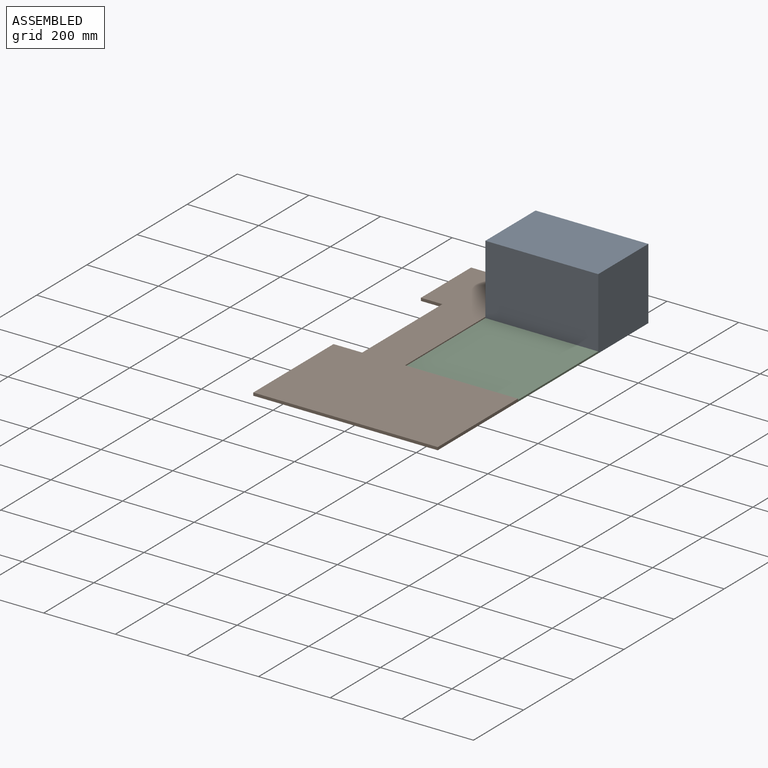
[diagram: assembled view]
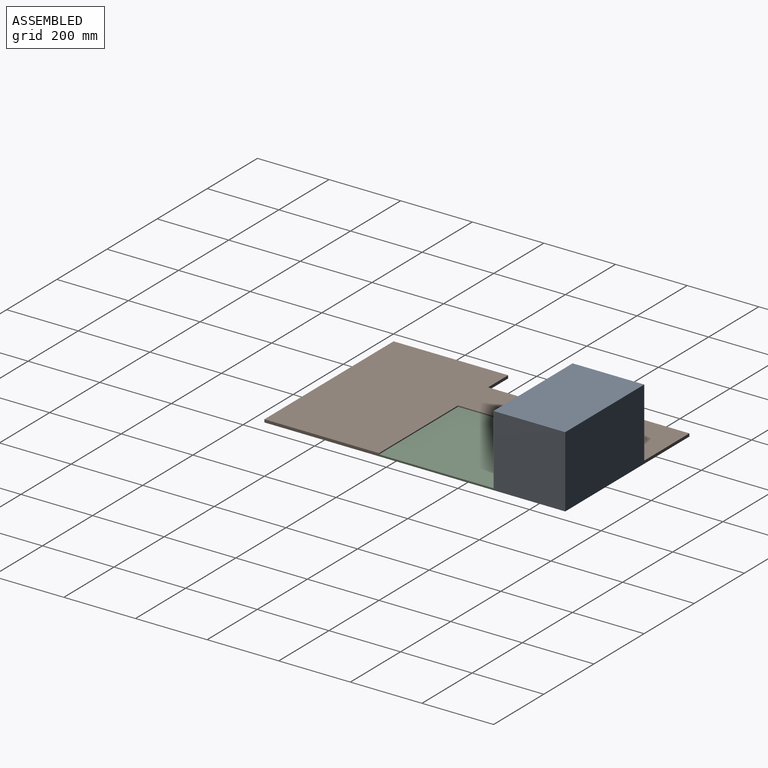
[diagram: assembled view, second angle]
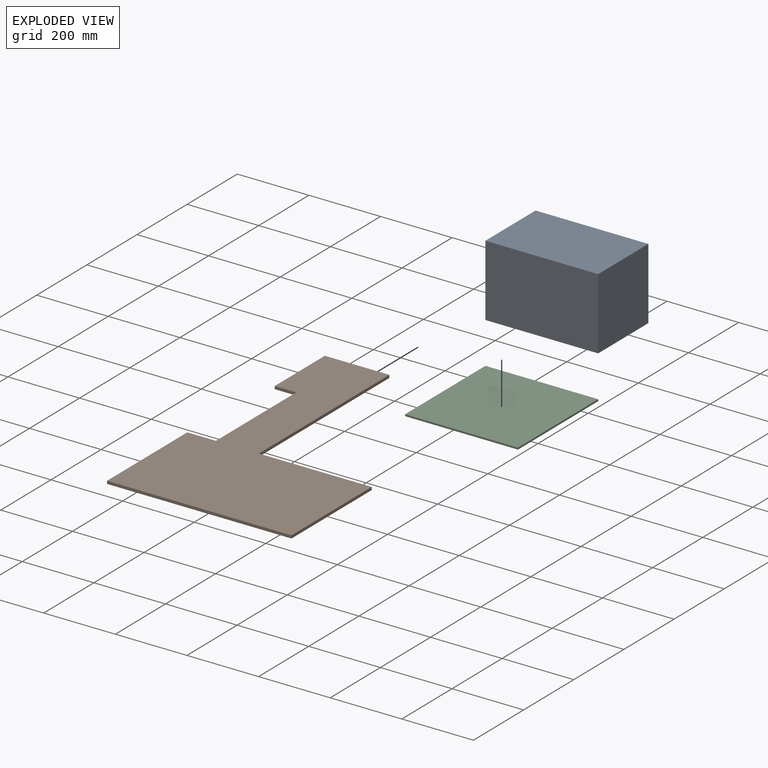
[diagram: exploded view]
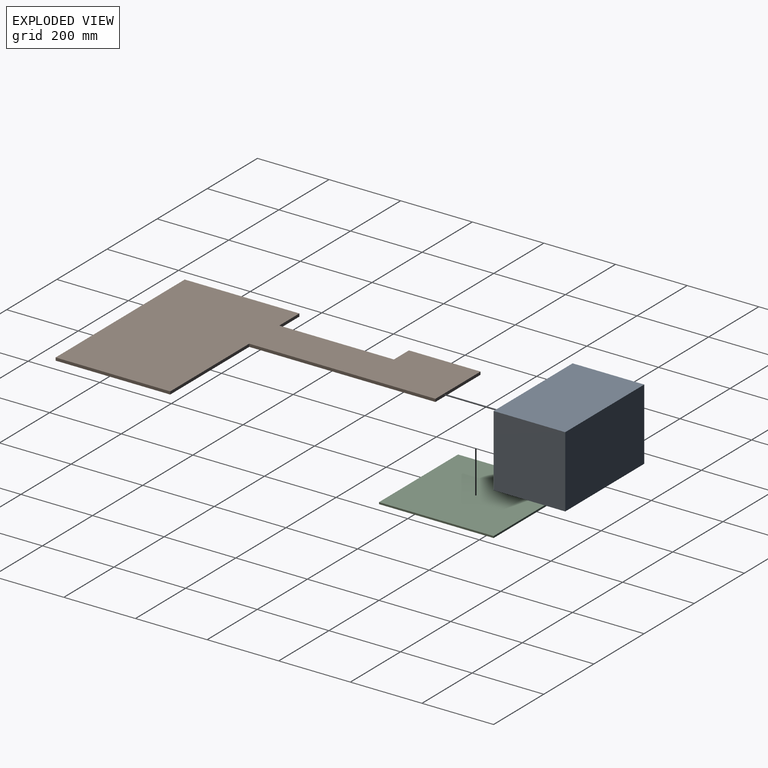
[diagram: exploded view, second angle]
ASSEMBLY  parts=3 mates=2
PART A: 6 faces, bbox 315x200x200 mm
  f0: plane 315x200mm, normal (0,-1,0), area 63000mm2, adj f1,f3,f4,f5
  f1: plane 200x200mm, normal (1,0,0), area 40000mm2, adj f0,f2,f4,f5
  f2: plane 315x200mm, normal (0,1,0), area 63000mm2, adj f1,f3,f4,f5
  f3: plane 200x200mm, normal (-1,0,0), area 40000mm2, adj f0,f2,f4,f5
  f4: plane 315x200mm, normal (0,0,1), area 63000mm2, adj f0,f1,f2,f3
  f5: plane 315x200mm, normal (0,0,-1), area 63000mm2, adj f0,f1,f2,f3
PART B: 12 faces, bbox 515x840x8 mm
  f0: plane 180x8mm, normal (0,1,0), area 1440mm2, adj f1,f9,f10,f11
  f1: plane 200x8mm, normal (-1,0,0), area 1600mm2, adj f0,f2,f10,f11
  f2: plane 60x8mm, normal (0,-1,0), area 480mm2, adj f1,f3,f10,f11
  f3: plane 320x8mm, normal (-1,0,0), area 2560mm2, adj f2,f4,f10,f11
  f4: plane 80x8mm, normal (0,1,0), area 640mm2, adj f3,f5,f10,f11
  f5: plane 320x8mm, normal (-1,0,0), area 2560mm2, adj f4,f6,f10,f11
  f6: plane 515x8mm, normal (0,-1,0), area 4120mm2, adj f5,f7,f10,f11
  f7: plane 320x8mm, normal (1,0,0), area 2560mm2, adj f6,f8,f10,f11
  f8: plane 315x8mm, normal (0,1,0), area 2520mm2, adj f7,f9,f10,f11
  f9: plane 520x8mm, normal (1,0,0), area 4160mm2, adj f0,f8,f10,f11
  f10: plane 840x515mm, normal (0,0,1), area 239200mm2, adj f0,f1,f2,f3,f4,f5,f6,f7
  f11: plane 840x515mm, normal (0,0,-1), area 239200mm2, adj f0,f1,f2,f3,f4,f5,f6,f7
PART C: 6 faces, bbox 315x320x5 mm
  f0: plane 315x5mm, normal (0,1,0), area 1575mm2, adj f1,f3,f4,f5
  f1: plane 320x5mm, normal (-1,0,0), area 1600mm2, adj f0,f2,f4,f5
  f2: plane 315x5mm, normal (0,-1,0), area 1575mm2, adj f1,f3,f4,f5
  f3: plane 320x5mm, normal (1,0,0), area 1600mm2, adj f0,f2,f4,f5
  f4: plane 320x315mm, normal (0,0,1), area 100800mm2, adj f0,f1,f2,f3
  f5: plane 320x315mm, normal (0,0,-1), area 100800mm2, adj f0,f1,f2,f3
PLACE A t=(-6.37,586.98,0)mm
PLACE B t=(49.35,756.74,0)mm
PLACE C t=(-315,640,0)mm
MATE fastened C.f2 <-> B.f8  axis (0,-1,0) through (-157.5,320,0)mm
MATE fastened A.f0 <-> C.f0  axis (0,-1,0) through (-157.5,640,0)mm
